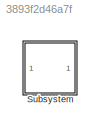
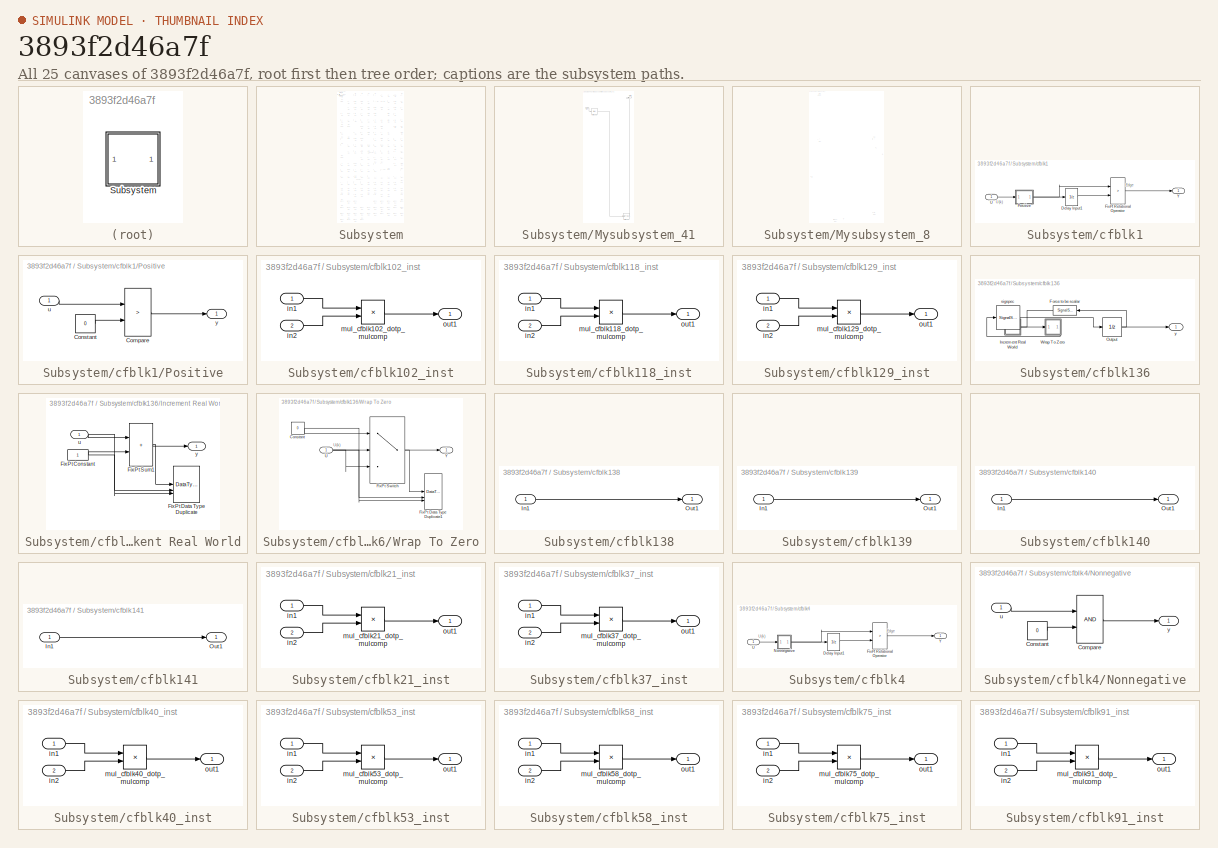
[diagram: thumbnail index - all 25 canvases of the model, root first then tree order]
MODEL slx_3893f2d46a7f
KIND model
CONFIG AbsTol = auto
CONFIG EnableMultiTasking = off
CONFIG FixedStep = auto
CONFIG MaxStep = auto
CONFIG MinStep = auto
CONFIG RelTol = 1e-3
CONFIG SampleTimeConstraint = Unconstrained
CONFIG SolverName = VariableStepAuto
CONFIG StartTime = 0.0
CONFIG StopTime = 10.0
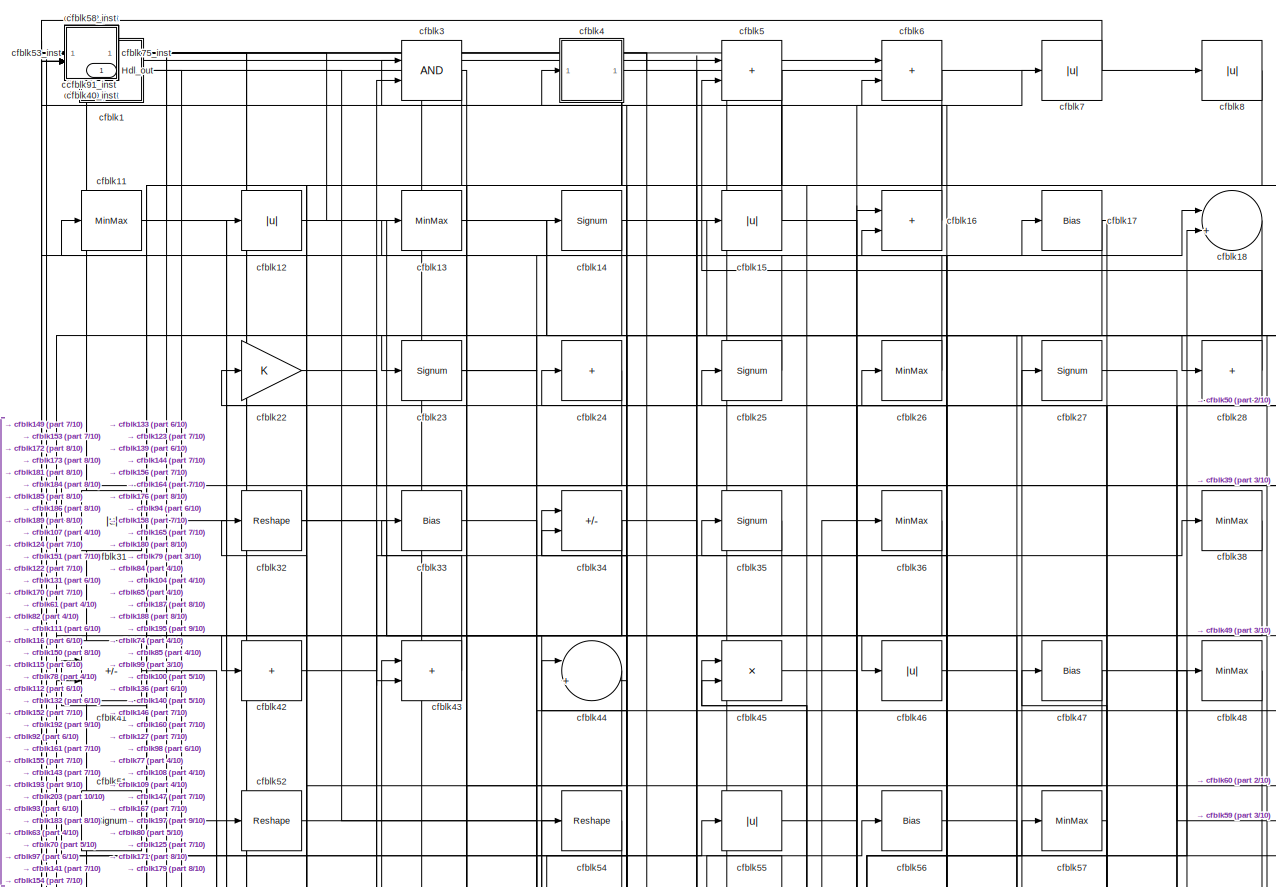
[diagram: Subsystem - part 1/10, full width, top band]
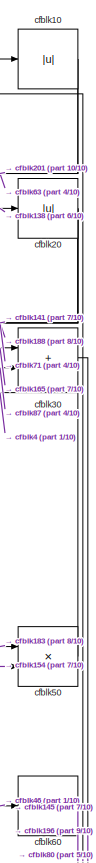
[diagram: Subsystem - part 2/10, top right region]
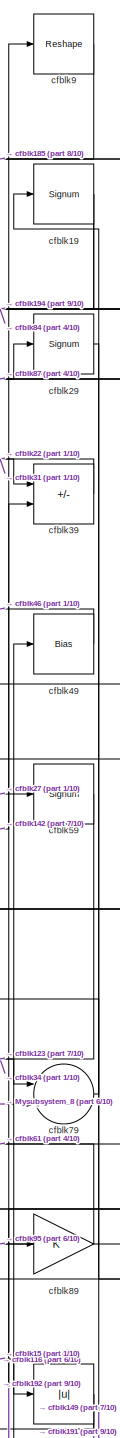
[diagram: Subsystem - part 3/10, top right region]
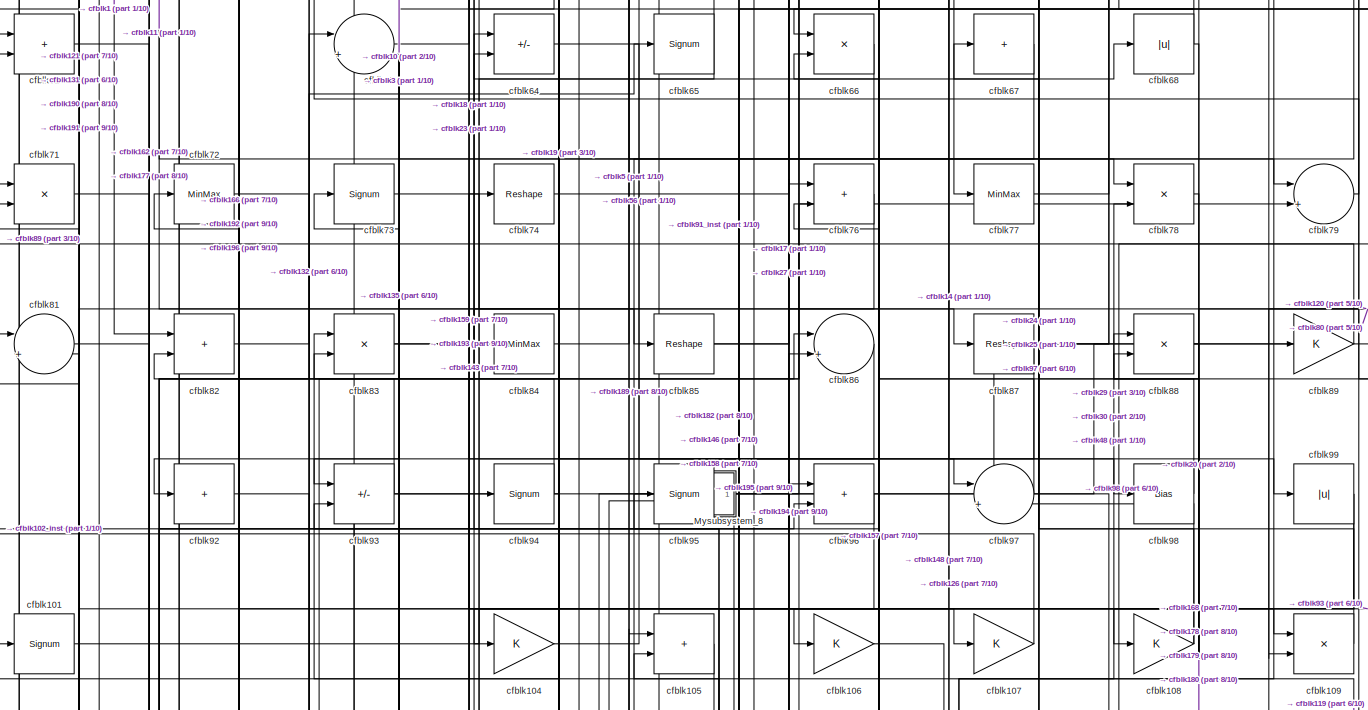
[diagram: Subsystem - part 4/10, full width, middle band]
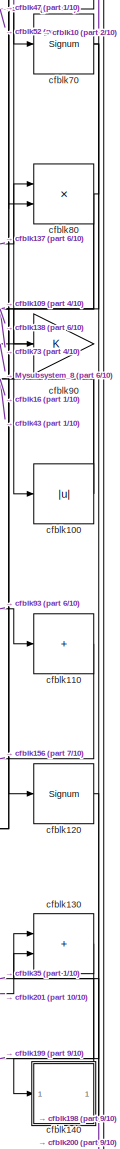
[diagram: Subsystem - part 5/10, middle right region]
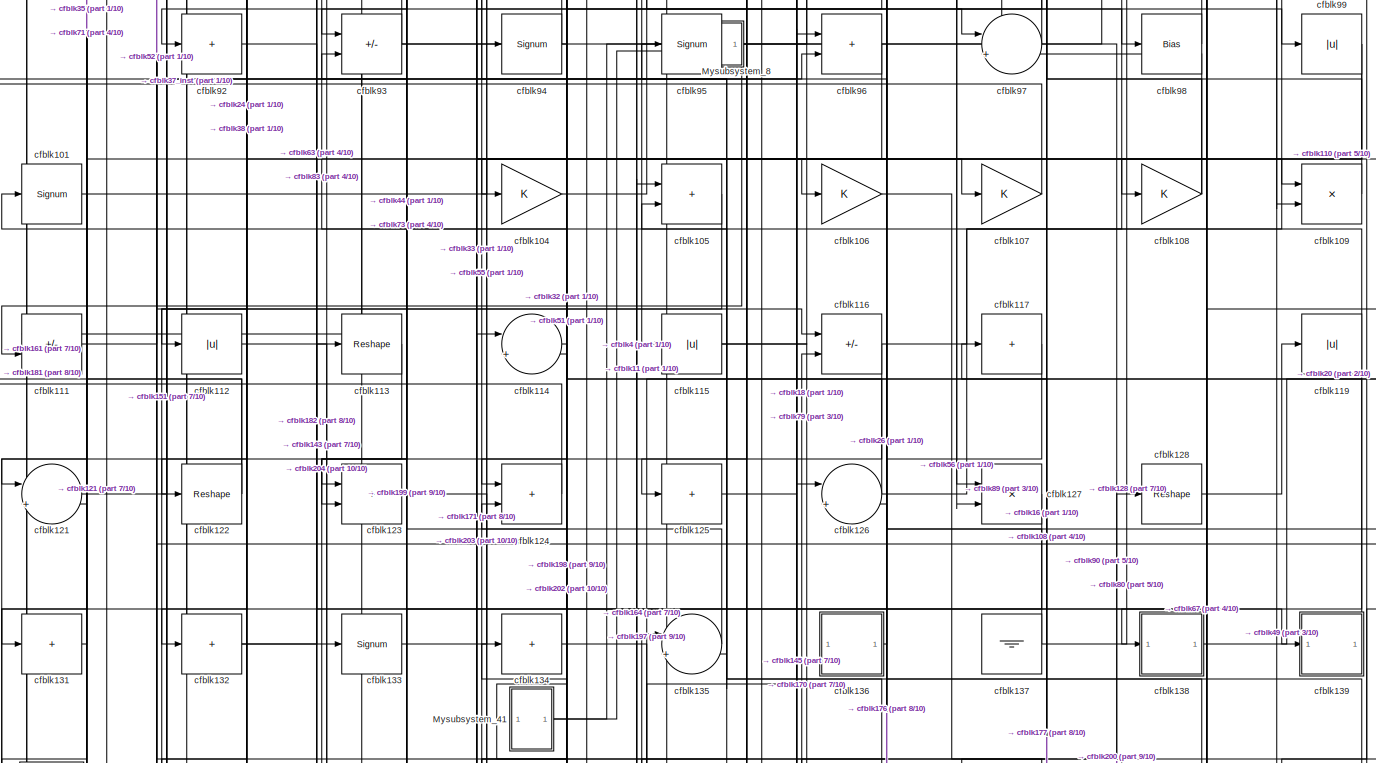
[diagram: Subsystem - part 6/10, full width, middle band]
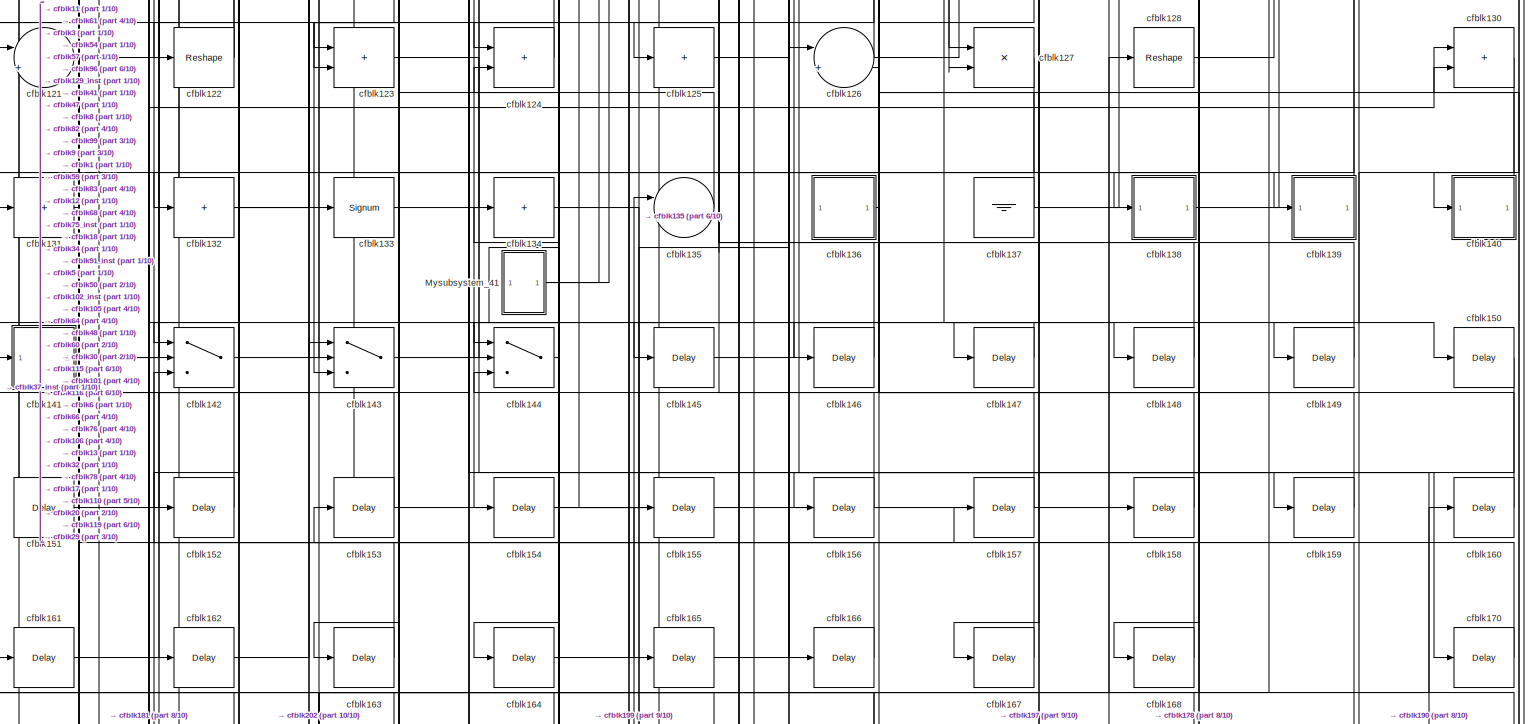
[diagram: Subsystem - part 7/10, full width, bottom band]
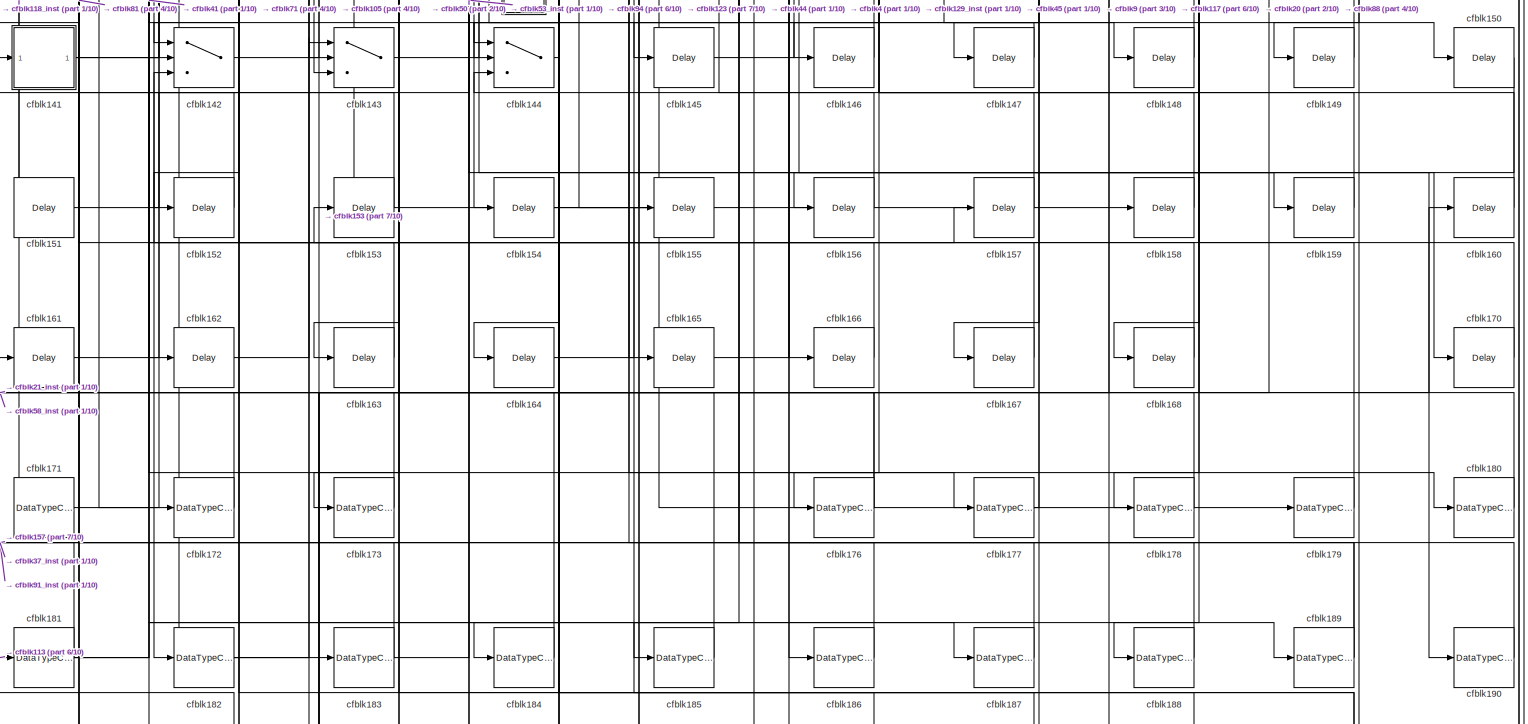
[diagram: Subsystem - part 8/10, full width, bottom band]
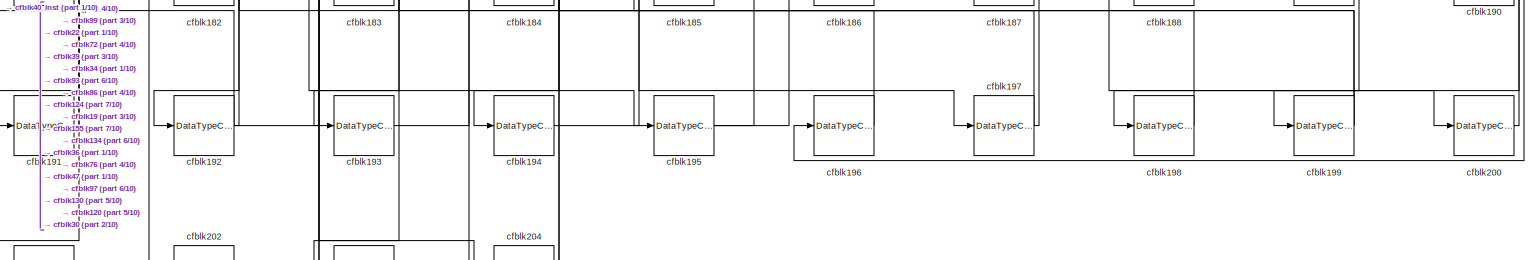
[diagram: Subsystem - part 9/10, full width, bottom band]
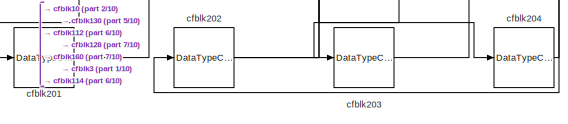
[diagram: Subsystem - part 10/10, bottom left region]
BLOCK [SubSystem] Subsystem
BLOCK [Outport] Subsystem/Hdl_out
  OutDataTypeStr = uint8
  SampleTime = 1
BLOCK [SubSystem] Subsystem/Mysubsystem_41
BLOCK [Inport] Subsystem/Mysubsystem_41/In1
  OutDataTypeStr = uint8
  PortDimensions = 1
  SampleTime = 1
BLOCK [Outport] Subsystem/Mysubsystem_41/Out1
  SampleTime = 1
BLOCK [Bias] Subsystem/Mysubsystem_41/cfblk103
  Bias = 0.0
  SaturateOnIntegerOverflow = off
BLOCK [DataTypeConversion] Subsystem/Mysubsystem_41/cfblk175
  OutDataTypeStr = uint8
  RndMeth = Floor
  SaturateOnIntegerOverflow = off
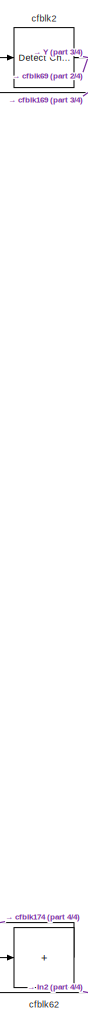
[diagram: Subsystem/Mysubsystem_8 - part 1/4, top left region]
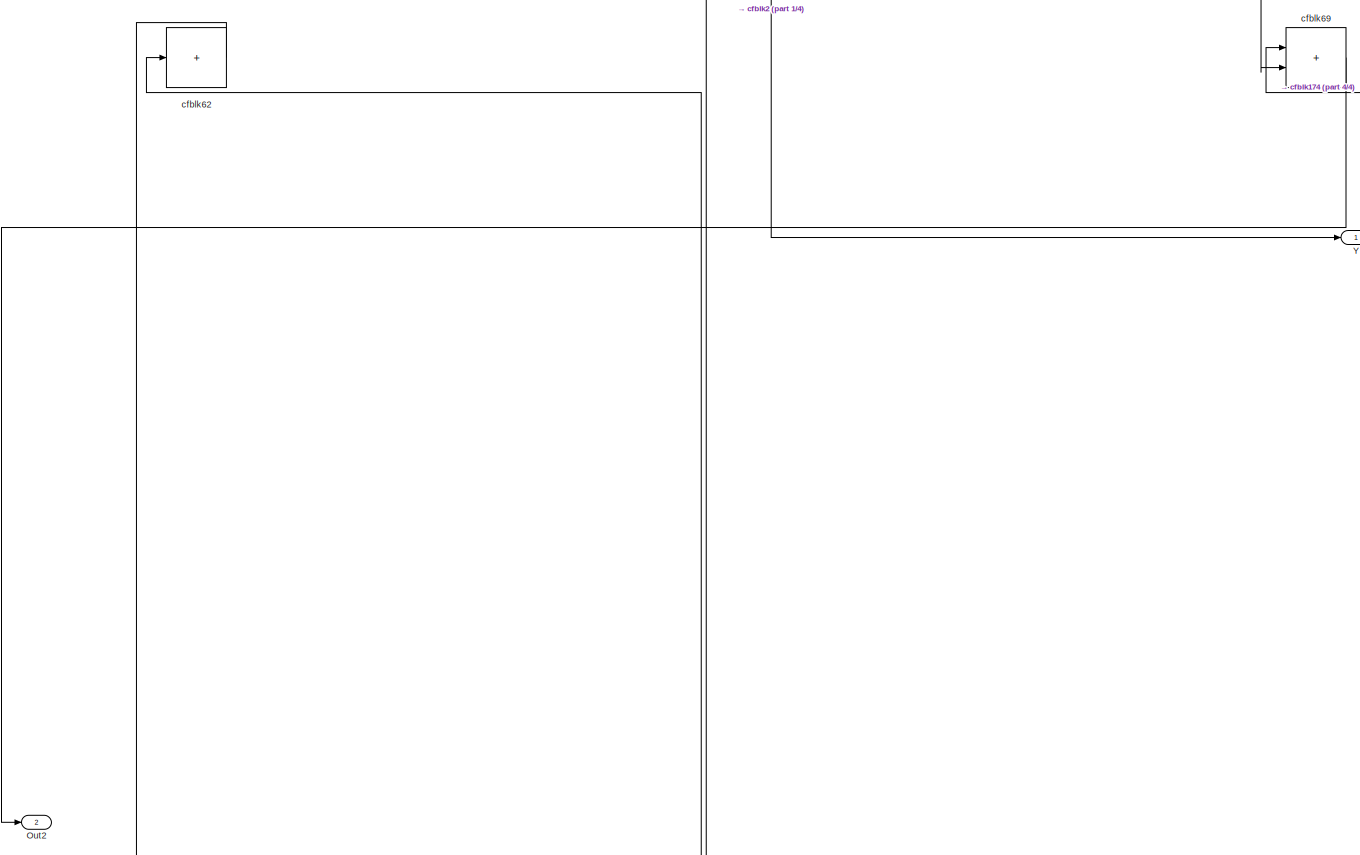
[diagram: Subsystem/Mysubsystem_8 - part 2/4, full width, middle band]
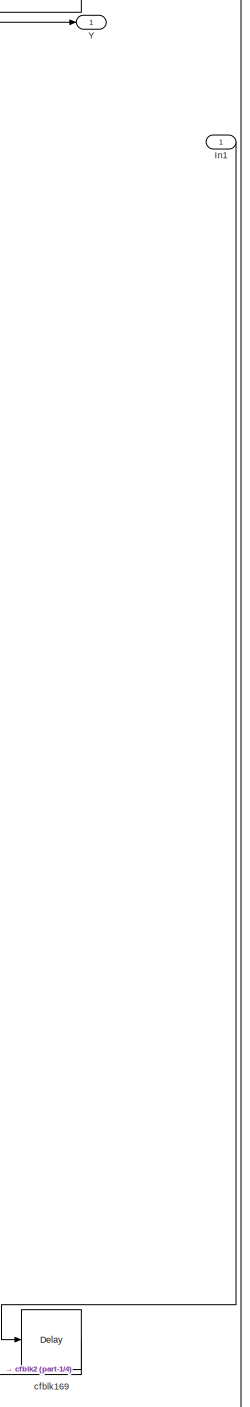
[diagram: Subsystem/Mysubsystem_8 - part 3/4, bottom right region]
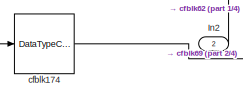
[diagram: Subsystem/Mysubsystem_8 - part 4/4, bottom center region]
BLOCK [SubSystem] Subsystem/Mysubsystem_8
BLOCK [Inport] Subsystem/Mysubsystem_8/In1
  OutDataTypeStr = uint8
  PortDimensions = 1
  SampleTime = 1
BLOCK [Inport] Subsystem/Mysubsystem_8/In2
  OutDataTypeStr = uint8
  Port = 2
  PortDimensions = 1
  SampleTime = 1
BLOCK [Outport] Subsystem/Mysubsystem_8/Out2
  Port = 2
  SampleTime = 1
BLOCK [Outport] Subsystem/Mysubsystem_8/Y
  SampleTime = 1
BLOCK [Delay] Subsystem/Mysubsystem_8/cfblk169
  InputPortMap = u0
  SampleTime = 1
BLOCK [DataTypeConversion] Subsystem/Mysubsystem_8/cfblk174
  OutDataTypeStr = uint8
  RndMeth = Floor
  SaturateOnIntegerOverflow = off
BLOCK [Reference] Subsystem/Mysubsystem_8/cfblk2  REF=simulink/Logic and Bit
Operations/Detect
Change
  LibrarySourceBlock = hdlsllib/Logic and Bit\nOperations/Detect\nChange
  SourceBlock = simulink/Logic and Bit\nOperations/Detect\nChange
  SourceType = Detect Change
BLOCK [Sum] Subsystem/Mysubsystem_8/cfblk62
  IconShape = rectangular
  Inputs = +
BLOCK [Sum] Subsystem/Mysubsystem_8/cfblk69
  IconShape = rectangular
BLOCK [SubSystem] Subsystem/cfblk1
BLOCK [UnitDelay] Subsystem/cfblk1/Delay Input1
  Description = Store in Global RAM
  DisableCoverage = on
  HasFrameUpgradeWarning = on
  InitialCondition = vinit
  SampleTime = -1
BLOCK [RelationalOperator] Subsystem/cfblk1/FixPt Relational Operator
  InputSameDT = off
  Operator = >
  OutDataTypeStr = fixdt(0, 8)
  ZeroCross = off
BLOCK [SubSystem] Subsystem/cfblk1/Positive
BLOCK [RelationalOperator] Subsystem/cfblk1/Positive/Compare
  Operator = >
  OutDataTypeStr = boolean
  ZeroCross = off
BLOCK [Constant] Subsystem/cfblk1/Positive/Constant
  DisableCoverage = on
  OutDataTypeStr = Inherit: Inherit via back propagation
  PreserveConstantTs = on
  SampleTime = -1
  Value = 0
BLOCK [Inport] Subsystem/cfblk1/Positive/u
  OutDataTypeStr = uint8
  SampleTime = 1
BLOCK [Outport] Subsystem/cfblk1/Positive/y
  SampleTime = 1
BLOCK [Inport] Subsystem/cfblk1/U
  OutDataTypeStr = uint8
  SampleTime = 1
BLOCK [Outport] Subsystem/cfblk1/Y
  SampleTime = 1
BLOCK [Abs] Subsystem/cfblk10
  OutDataTypeStr = uint8
  SaturateOnIntegerOverflow = off
BLOCK [Abs] Subsystem/cfblk100
  OutDataTypeStr = uint8
  SaturateOnIntegerOverflow = off
BLOCK [Signum] Subsystem/cfblk101
BLOCK [SubSystem] Subsystem/cfblk102_inst
BLOCK [Inport] Subsystem/cfblk102_inst/in1
  OutDataTypeStr = uint8
  SampleTime = 1
BLOCK [Inport] Subsystem/cfblk102_inst/in2
  OutDataTypeStr = uint8
  Port = 2
  SampleTime = 1
BLOCK [Product] Subsystem/cfblk102_inst/mul_cfblk102_dotp_mulcomp
  Inputs = **
  OutDataTypeStr = uint8
  SampleTime = 1
BLOCK [Outport] Subsystem/cfblk102_inst/out1
  OutDataTypeStr = uint8
  SampleTime = 1
BLOCK [Gain] Subsystem/cfblk104
  OutDataTypeStr = uint8
BLOCK [Sum] Subsystem/cfblk105
  IconShape = rectangular
  OutDataTypeStr = uint8
BLOCK [Gain] Subsystem/cfblk106
  OutDataTypeStr = uint8
BLOCK [Gain] Subsystem/cfblk107
  OutDataTypeStr = uint8
BLOCK [Gain] Subsystem/cfblk108
  OutDataTypeStr = uint8
BLOCK [Product] Subsystem/cfblk109
  Inputs = */
  OutDataTypeStr = uint8
  RndMeth = Zero
  SaturateOnIntegerOverflow = on
BLOCK [MinMax] Subsystem/cfblk11
  OutDataTypeStr = uint8
BLOCK [Sum] Subsystem/cfblk110
  IconShape = rectangular
  Inputs = +
  OutDataTypeStr = uint8
BLOCK [Sum] Subsystem/cfblk111
  IconShape = rectangular
  Inputs = +-
  OutDataTypeStr = uint8
BLOCK [Abs] Subsystem/cfblk112
  OutDataTypeStr = uint8
  SaturateOnIntegerOverflow = off
BLOCK [Reshape] Subsystem/cfblk113
BLOCK [Sum] Subsystem/cfblk114
  Inputs = |++
  OutDataTypeStr = uint8
BLOCK [Abs] Subsystem/cfblk115
  OutDataTypeStr = uint8
  SaturateOnIntegerOverflow = off
BLOCK [Sum] Subsystem/cfblk116
  IconShape = rectangular
  Inputs = +-
  OutDataTypeStr = uint8
BLOCK [Sum] Subsystem/cfblk117
  IconShape = rectangular
  Inputs = +
  OutDataTypeStr = uint8
BLOCK [SubSystem] Subsystem/cfblk118_inst
BLOCK [Inport] Subsystem/cfblk118_inst/in1
  OutDataTypeStr = uint8
  SampleTime = 1
BLOCK [Inport] Subsystem/cfblk118_inst/in2
  OutDataTypeStr = uint8
  Port = 2
  SampleTime = 1
BLOCK [Product] Subsystem/cfblk118_inst/mul_cfblk118_dotp_mulcomp
  Inputs = **
  OutDataTypeStr = uint8
  SampleTime = 1
BLOCK [Outport] Subsystem/cfblk118_inst/out1
  OutDataTypeStr = uint8
  SampleTime = 1
BLOCK [Abs] Subsystem/cfblk119
  OutDataTypeStr = uint8
  SaturateOnIntegerOverflow = off
BLOCK [Abs] Subsystem/cfblk12
  OutDataTypeStr = uint8
  SaturateOnIntegerOverflow = off
BLOCK [Signum] Subsystem/cfblk120
BLOCK [Sum] Subsystem/cfblk121
  Inputs = |++
  OutDataTypeStr = uint8
BLOCK [Reshape] Subsystem/cfblk122
BLOCK [Sum] Subsystem/cfblk123
  IconShape = rectangular
  OutDataTypeStr = uint8
BLOCK [Sum] Subsystem/cfblk124
  IconShape = rectangular
  OutDataTypeStr = uint8
BLOCK [Sum] Subsystem/cfblk125
  IconShape = rectangular
  Inputs = +
  OutDataTypeStr = uint8
BLOCK [Sum] Subsystem/cfblk126
  Inputs = |++
  OutDataTypeStr = uint8
BLOCK [Product] Subsystem/cfblk127
  Inputs = */
  OutDataTypeStr = uint8
  RndMeth = Zero
  SaturateOnIntegerOverflow = on
BLOCK [Reshape] Subsystem/cfblk128
BLOCK [SubSystem] Subsystem/cfblk129_inst
BLOCK [Inport] Subsystem/cfblk129_inst/in1
  OutDataTypeStr = uint8
  SampleTime = 1
BLOCK [Inport] Subsystem/cfblk129_inst/in2
  OutDataTypeStr = uint8
  Port = 2
  SampleTime = 1
BLOCK [Product] Subsystem/cfblk129_inst/mul_cfblk129_dotp_mulcomp
  Inputs = **
  OutDataTypeStr = uint8
  SampleTime = 1
BLOCK [Outport] Subsystem/cfblk129_inst/out1
  OutDataTypeStr = uint8
  SampleTime = 1
BLOCK [MinMax] Subsystem/cfblk13
  OutDataTypeStr = uint8
BLOCK [Sum] Subsystem/cfblk130
  IconShape = rectangular
  OutDataTypeStr = uint8
BLOCK [Sum] Subsystem/cfblk131
  IconShape = rectangular
  Inputs = +
  OutDataTypeStr = uint8
BLOCK [Sum] Subsystem/cfblk132
  IconShape = rectangular
  Inputs = +
  OutDataTypeStr = uint8
BLOCK [Signum] Subsystem/cfblk133
BLOCK [Sum] Subsystem/cfblk134
  IconShape = rectangular
  Inputs = +
  OutDataTypeStr = uint8
BLOCK [Sum] Subsystem/cfblk135
  Inputs = |++
  OutDataTypeStr = uint8
BLOCK [SubSystem] Subsystem/cfblk136
BLOCK [SignalSpecification] Subsystem/cfblk136/Force to be scalar
  Dimensions = 1
  DisableCoverage = on
BLOCK [SubSystem] Subsystem/cfblk136/Increment Real World
BLOCK [Constant] Subsystem/cfblk136/Increment Real World/FixPt Constant
  DisableCoverage = on
  OutDataTypeStr = Inherit: Inherit via back propagation
  SampleTime = -1
BLOCK [DataTypeDuplicate] Subsystem/cfblk136/Increment Real World/FixPt Data Type Duplicate
  DisableCoverage = on
  NumInputPorts = 3
BLOCK [Sum] Subsystem/cfblk136/Increment Real World/FixPt Sum1
  IconShape = rectangular
  InputSameDT = on
  LockScale = on
  OutDataTypeStr = Inherit: Inherit via back propagation
BLOCK [Inport] Subsystem/cfblk136/Increment Real World/u
  OutDataTypeStr = uint16
  SampleTime = 1
BLOCK [Outport] Subsystem/cfblk136/Increment Real World/y
  SampleTime = 1
BLOCK [UnitDelay] Subsystem/cfblk136/Output
  HasFrameUpgradeWarning = on
  InitialCondition = 0.0
  SampleTime = tsamp
BLOCK [SubSystem] Subsystem/cfblk136/Wrap To Zero
BLOCK [Constant] Subsystem/cfblk136/Wrap To Zero/Constant
  DisableCoverage = on
  OutDataTypeStr = Inherit: Inherit via back propagation
  SampleTime = -1
  Value = 0
BLOCK [DataTypeDuplicate] Subsystem/cfblk136/Wrap To Zero/FixPt Data Type Duplicate1
  DisableCoverage = on
  NumInputPorts = 3
BLOCK [Switch] Subsystem/cfblk136/Wrap To Zero/FixPt Switch
  Criteria = u2 > Threshold
  InputSameDT = off
  OutDataTypeStr = Inherit: Inherit via back propagation
  SaturateOnIntegerOverflow = off
  Threshold = Threshold
  ZeroCross = off
BLOCK [Inport] Subsystem/cfblk136/Wrap To Zero/U
  OutDataTypeStr = uint16
  SampleTime = 1
BLOCK [Outport] Subsystem/cfblk136/Wrap To Zero/Y
  SampleTime = 1
BLOCK [SignalSpecification] Subsystem/cfblk136/sigspec
  Dimensions = 1
  OutDataTypeStr = uint16
BLOCK [Outport] Subsystem/cfblk136/y
  SampleTime = 1
BLOCK [Ground] Subsystem/cfblk137
BLOCK [SubSystem] Subsystem/cfblk138
BLOCK [Inport] Subsystem/cfblk138/In1
  OutDataTypeStr = uint8
  PortDimensions = 1
  SampleTime = 1
BLOCK [Outport] Subsystem/cfblk138/Out1
  SampleTime = 1
BLOCK [SubSystem] Subsystem/cfblk139
BLOCK [Inport] Subsystem/cfblk139/In1
  OutDataTypeStr = uint8
  PortDimensions = 1
  SampleTime = 1
BLOCK [Outport] Subsystem/cfblk139/Out1
  SampleTime = 1
BLOCK [Signum] Subsystem/cfblk14
BLOCK [SubSystem] Subsystem/cfblk140
BLOCK [Inport] Subsystem/cfblk140/In1
  OutDataTypeStr = uint8
  PortDimensions = 1
  SampleTime = 1
BLOCK [Outport] Subsystem/cfblk140/Out1
  SampleTime = 1
BLOCK [SubSystem] Subsystem/cfblk141
BLOCK [Inport] Subsystem/cfblk141/In1
  OutDataTypeStr = uint8
  PortDimensions = 1
  SampleTime = 1
BLOCK [Outport] Subsystem/cfblk141/Out1
  SampleTime = 1
BLOCK [Switch] Subsystem/cfblk142
  InputSameDT = off
  OutDataTypeStr = uint8
  SaturateOnIntegerOverflow = off
BLOCK [Switch] Subsystem/cfblk143
  InputSameDT = off
  OutDataTypeStr = uint8
  SaturateOnIntegerOverflow = off
BLOCK [Switch] Subsystem/cfblk144
  InputSameDT = off
  OutDataTypeStr = uint8
  SaturateOnIntegerOverflow = off
BLOCK [Delay] Subsystem/cfblk145
  InputPortMap = u0
  SampleTime = 1
BLOCK [Delay] Subsystem/cfblk146
  InputPortMap = u0
  SampleTime = 1
BLOCK [Delay] Subsystem/cfblk147
  InputPortMap = u0
  SampleTime = 1
BLOCK [Delay] Subsystem/cfblk148
  InputPortMap = u0
  SampleTime = 1
BLOCK [Delay] Subsystem/cfblk149
  InputPortMap = u0
  SampleTime = 1
BLOCK [Abs] Subsystem/cfblk15
  OutDataTypeStr = uint8
  SaturateOnIntegerOverflow = off
BLOCK [Delay] Subsystem/cfblk150
  InputPortMap = u0
  SampleTime = 1
BLOCK [Delay] Subsystem/cfblk151
  InputPortMap = u0
  SampleTime = 1
BLOCK [Delay] Subsystem/cfblk152
  InputPortMap = u0
  SampleTime = 1
BLOCK [Delay] Subsystem/cfblk153
  InputPortMap = u0
  SampleTime = 1
BLOCK [Delay] Subsystem/cfblk154
  InputPortMap = u0
  SampleTime = 1
BLOCK [Delay] Subsystem/cfblk155
  InputPortMap = u0
  SampleTime = 1
BLOCK [Delay] Subsystem/cfblk156
  InputPortMap = u0
  SampleTime = 1
BLOCK [Delay] Subsystem/cfblk157
  InputPortMap = u0
  SampleTime = 1
BLOCK [Delay] Subsystem/cfblk158
  InputPortMap = u0
  SampleTime = 1
BLOCK [Delay] Subsystem/cfblk159
  InputPortMap = u0
  SampleTime = 1
BLOCK [Sum] Subsystem/cfblk16
  IconShape = rectangular
  OutDataTypeStr = uint8
BLOCK [Delay] Subsystem/cfblk160
  InputPortMap = u0
  SampleTime = 1
BLOCK [Delay] Subsystem/cfblk161
  InputPortMap = u0
  SampleTime = 1
BLOCK [Delay] Subsystem/cfblk162
  InputPortMap = u0
  SampleTime = 1
BLOCK [Delay] Subsystem/cfblk163
  InputPortMap = u0
  SampleTime = 1
BLOCK [Delay] Subsystem/cfblk164
  InputPortMap = u0
  SampleTime = 1
BLOCK [Delay] Subsystem/cfblk165
  InputPortMap = u0
  SampleTime = 1
BLOCK [Delay] Subsystem/cfblk166
  InputPortMap = u0
  SampleTime = 1
BLOCK [Delay] Subsystem/cfblk167
  InputPortMap = u0
  SampleTime = 1
BLOCK [Delay] Subsystem/cfblk168
  InputPortMap = u0
  SampleTime = 1
BLOCK [Bias] Subsystem/cfblk17
  Bias = 0.0
  SaturateOnIntegerOverflow = off
BLOCK [Delay] Subsystem/cfblk170
  InputPortMap = u0
  SampleTime = 1
BLOCK [DataTypeConversion] Subsystem/cfblk171
  OutDataTypeStr = uint8
  RndMeth = Floor
  SaturateOnIntegerOverflow = off
BLOCK [DataTypeConversion] Subsystem/cfblk172
  OutDataTypeStr = uint8
  RndMeth = Floor
  SaturateOnIntegerOverflow = off
BLOCK [DataTypeConversion] Subsystem/cfblk173
  OutDataTypeStr = uint8
  RndMeth = Floor
  SaturateOnIntegerOverflow = off
BLOCK [DataTypeConversion] Subsystem/cfblk176
  OutDataTypeStr = uint8
  RndMeth = Floor
  SaturateOnIntegerOverflow = off
BLOCK [DataTypeConversion] Subsystem/cfblk177
  OutDataTypeStr = uint8
  RndMeth = Floor
  SaturateOnIntegerOverflow = off
BLOCK [DataTypeConversion] Subsystem/cfblk178
  OutDataTypeStr = uint8
  RndMeth = Floor
  SaturateOnIntegerOverflow = off
BLOCK [DataTypeConversion] Subsystem/cfblk179
  OutDataTypeStr = uint8
  RndMeth = Floor
  SaturateOnIntegerOverflow = off
BLOCK [Sum] Subsystem/cfblk18
  Inputs = |++
  OutDataTypeStr = uint8
BLOCK [DataTypeConversion] Subsystem/cfblk180
  OutDataTypeStr = uint8
  RndMeth = Floor
  SaturateOnIntegerOverflow = off
BLOCK [DataTypeConversion] Subsystem/cfblk181
  OutDataTypeStr = uint8
  RndMeth = Floor
  SaturateOnIntegerOverflow = off
BLOCK [DataTypeConversion] Subsystem/cfblk182
  OutDataTypeStr = uint8
  RndMeth = Floor
  SaturateOnIntegerOverflow = off
BLOCK [DataTypeConversion] Subsystem/cfblk183
  OutDataTypeStr = uint8
  RndMeth = Floor
  SaturateOnIntegerOverflow = off
BLOCK [DataTypeConversion] Subsystem/cfblk184
  OutDataTypeStr = uint8
  RndMeth = Floor
  SaturateOnIntegerOverflow = off
BLOCK [DataTypeConversion] Subsystem/cfblk185
  OutDataTypeStr = uint8
  RndMeth = Floor
  SaturateOnIntegerOverflow = off
BLOCK [DataTypeConversion] Subsystem/cfblk186
  OutDataTypeStr = uint8
  RndMeth = Floor
  SaturateOnIntegerOverflow = off
BLOCK [DataTypeConversion] Subsystem/cfblk187
  OutDataTypeStr = uint8
  RndMeth = Floor
  SaturateOnIntegerOverflow = off
BLOCK [DataTypeConversion] Subsystem/cfblk188
  OutDataTypeStr = uint8
  RndMeth = Floor
  SaturateOnIntegerOverflow = off
BLOCK [DataTypeConversion] Subsystem/cfblk189
  OutDataTypeStr = uint8
  RndMeth = Floor
  SaturateOnIntegerOverflow = off
BLOCK [Signum] Subsystem/cfblk19
BLOCK [DataTypeConversion] Subsystem/cfblk190
  OutDataTypeStr = uint8
  RndMeth = Floor
  SaturateOnIntegerOverflow = off
BLOCK [DataTypeConversion] Subsystem/cfblk191
  OutDataTypeStr = uint8
  RndMeth = Floor
  SaturateOnIntegerOverflow = off
BLOCK [DataTypeConversion] Subsystem/cfblk192
  OutDataTypeStr = uint8
  RndMeth = Floor
  SaturateOnIntegerOverflow = off
BLOCK [DataTypeConversion] Subsystem/cfblk193
  OutDataTypeStr = uint8
  RndMeth = Floor
  SaturateOnIntegerOverflow = off
BLOCK [DataTypeConversion] Subsystem/cfblk194
  OutDataTypeStr = uint8
  RndMeth = Floor
  SaturateOnIntegerOverflow = off
BLOCK [DataTypeConversion] Subsystem/cfblk195
  OutDataTypeStr = uint8
  RndMeth = Floor
  SaturateOnIntegerOverflow = off
BLOCK [DataTypeConversion] Subsystem/cfblk196
  OutDataTypeStr = uint8
  RndMeth = Floor
  SaturateOnIntegerOverflow = off
BLOCK [DataTypeConversion] Subsystem/cfblk197
  OutDataTypeStr = uint8
  RndMeth = Floor
  SaturateOnIntegerOverflow = off
BLOCK [DataTypeConversion] Subsystem/cfblk198
  OutDataTypeStr = uint8
  RndMeth = Floor
  SaturateOnIntegerOverflow = off
BLOCK [DataTypeConversion] Subsystem/cfblk199
  OutDataTypeStr = uint8
  RndMeth = Floor
  SaturateOnIntegerOverflow = off
BLOCK [Abs] Subsystem/cfblk20
  OutDataTypeStr = uint8
  SaturateOnIntegerOverflow = off
BLOCK [DataTypeConversion] Subsystem/cfblk200
  OutDataTypeStr = uint8
  RndMeth = Floor
  SaturateOnIntegerOverflow = off
BLOCK [DataTypeConversion] Subsystem/cfblk201
  OutDataTypeStr = uint8
  RndMeth = Floor
  SaturateOnIntegerOverflow = off
BLOCK [DataTypeConversion] Subsystem/cfblk202
  OutDataTypeStr = uint8
  RndMeth = Floor
  SaturateOnIntegerOverflow = off
BLOCK [DataTypeConversion] Subsystem/cfblk203
  OutDataTypeStr = uint8
  RndMeth = Floor
  SaturateOnIntegerOverflow = off
BLOCK [DataTypeConversion] Subsystem/cfblk204
  OutDataTypeStr = uint8
  RndMeth = Floor
  SaturateOnIntegerOverflow = off
BLOCK [SubSystem] Subsystem/cfblk21_inst
BLOCK [Inport] Subsystem/cfblk21_inst/in1
  OutDataTypeStr = uint8
  SampleTime = 1
BLOCK [Inport] Subsystem/cfblk21_inst/in2
  OutDataTypeStr = uint8
  Port = 2
  SampleTime = 1
BLOCK [Product] Subsystem/cfblk21_inst/mul_cfblk21_dotp_mulcomp
  Inputs = **
  OutDataTypeStr = uint8
  SampleTime = 1
BLOCK [Outport] Subsystem/cfblk21_inst/out1
  OutDataTypeStr = uint8
  SampleTime = 1
BLOCK [Gain] Subsystem/cfblk22
  OutDataTypeStr = uint8
BLOCK [Signum] Subsystem/cfblk23
BLOCK [Sum] Subsystem/cfblk24
  IconShape = rectangular
  Inputs = +
  OutDataTypeStr = uint8
BLOCK [Signum] Subsystem/cfblk25
BLOCK [MinMax] Subsystem/cfblk26
  OutDataTypeStr = uint8
BLOCK [Signum] Subsystem/cfblk27
BLOCK [Sum] Subsystem/cfblk28
  IconShape = rectangular
  Inputs = +
  OutDataTypeStr = uint8
BLOCK [Signum] Subsystem/cfblk29
BLOCK [Logic] Subsystem/cfblk3
  AllPortsSameDT = off
  OutDataTypeStr = boolean
BLOCK [Sum] Subsystem/cfblk30
  IconShape = rectangular
  OutDataTypeStr = uint8
BLOCK [Abs] Subsystem/cfblk31
  OutDataTypeStr = uint8
  SaturateOnIntegerOverflow = off
BLOCK [Reshape] Subsystem/cfblk32
BLOCK [Bias] Subsystem/cfblk33
  Bias = 0.0
  SaturateOnIntegerOverflow = off
BLOCK [Sum] Subsystem/cfblk34
  IconShape = rectangular
  Inputs = +-
  OutDataTypeStr = uint8
BLOCK [Signum] Subsystem/cfblk35
BLOCK [MinMax] Subsystem/cfblk36
  OutDataTypeStr = uint8
BLOCK [SubSystem] Subsystem/cfblk37_inst
BLOCK [Inport] Subsystem/cfblk37_inst/in1
  OutDataTypeStr = uint8
  SampleTime = 1
BLOCK [Inport] Subsystem/cfblk37_inst/in2
  OutDataTypeStr = uint8
  Port = 2
  SampleTime = 1
BLOCK [Product] Subsystem/cfblk37_inst/mul_cfblk37_dotp_mulcomp
  Inputs = **
  OutDataTypeStr = uint8
  SampleTime = 1
BLOCK [Outport] Subsystem/cfblk37_inst/out1
  OutDataTypeStr = uint8
  SampleTime = 1
BLOCK [MinMax] Subsystem/cfblk38
  OutDataTypeStr = uint8
BLOCK [Sum] Subsystem/cfblk39
  IconShape = rectangular
  Inputs = +-
  OutDataTypeStr = uint8
BLOCK [SubSystem] Subsystem/cfblk4
BLOCK [UnitDelay] Subsystem/cfblk4/Delay Input1
  Description = Store in Global RAM
  DisableCoverage = on
  HasFrameUpgradeWarning = on
  InitialCondition = vinit
  SampleTime = -1
BLOCK [RelationalOperator] Subsystem/cfblk4/FixPt Relational Operator
  InputSameDT = off
  Operator = >
  OutDataTypeStr = fixdt(0, 8)
  ZeroCross = off
BLOCK [SubSystem] Subsystem/cfblk4/Nonnegative
BLOCK [RelationalOperator] Subsystem/cfblk4/Nonnegative/Compare
  OutDataTypeStr = boolean
  ZeroCross = off
BLOCK [Constant] Subsystem/cfblk4/Nonnegative/Constant
  DisableCoverage = on
  OutDataTypeStr = Inherit: Inherit via back propagation
  PreserveConstantTs = on
  SampleTime = -1
  Value = 0
BLOCK [Inport] Subsystem/cfblk4/Nonnegative/u
  OutDataTypeStr = uint8
  SampleTime = 1
BLOCK [Outport] Subsystem/cfblk4/Nonnegative/y
  SampleTime = 1
BLOCK [Inport] Subsystem/cfblk4/U
  OutDataTypeStr = uint8
  SampleTime = 1
BLOCK [Outport] Subsystem/cfblk4/Y
  SampleTime = 1
BLOCK [SubSystem] Subsystem/cfblk40_inst
BLOCK [Inport] Subsystem/cfblk40_inst/in1
  OutDataTypeStr = uint8
  SampleTime = 1
BLOCK [Inport] Subsystem/cfblk40_inst/in2
  OutDataTypeStr = uint8
  Port = 2
  SampleTime = 1
BLOCK [Product] Subsystem/cfblk40_inst/mul_cfblk40_dotp_mulcomp
  Inputs = **
  OutDataTypeStr = uint8
  SampleTime = 1
BLOCK [Outport] Subsystem/cfblk40_inst/out1
  OutDataTypeStr = uint8
  SampleTime = 1
BLOCK [Sum] Subsystem/cfblk41
  IconShape = rectangular
  Inputs = +-
  OutDataTypeStr = uint8
BLOCK [Sum] Subsystem/cfblk42
  IconShape = rectangular
  Inputs = +
  OutDataTypeStr = uint8
BLOCK [Sum] Subsystem/cfblk43
  IconShape = rectangular
  OutDataTypeStr = uint8
BLOCK [Sum] Subsystem/cfblk44
  Inputs = |++
  OutDataTypeStr = uint8
BLOCK [Product] Subsystem/cfblk45
  Inputs = */
  OutDataTypeStr = uint8
  RndMeth = Zero
  SaturateOnIntegerOverflow = on
BLOCK [Abs] Subsystem/cfblk46
  OutDataTypeStr = uint8
  SaturateOnIntegerOverflow = off
BLOCK [Bias] Subsystem/cfblk47
  Bias = 0.0
  SaturateOnIntegerOverflow = off
BLOCK [MinMax] Subsystem/cfblk48
  OutDataTypeStr = uint8
BLOCK [Bias] Subsystem/cfblk49
  Bias = 0.0
  SaturateOnIntegerOverflow = off
BLOCK [Sum] Subsystem/cfblk5
  IconShape = rectangular
  OutDataTypeStr = uint8
BLOCK [Product] Subsystem/cfblk50
  Inputs = */
  OutDataTypeStr = uint8
  RndMeth = Zero
  SaturateOnIntegerOverflow = on
BLOCK [Signum] Subsystem/cfblk51
BLOCK [Reshape] Subsystem/cfblk52
BLOCK [SubSystem] Subsystem/cfblk53_inst
BLOCK [Inport] Subsystem/cfblk53_inst/in1
  OutDataTypeStr = uint8
  SampleTime = 1
BLOCK [Inport] Subsystem/cfblk53_inst/in2
  OutDataTypeStr = uint8
  Port = 2
  SampleTime = 1
BLOCK [Product] Subsystem/cfblk53_inst/mul_cfblk53_dotp_mulcomp
  Inputs = **
  OutDataTypeStr = uint8
  SampleTime = 1
BLOCK [Outport] Subsystem/cfblk53_inst/out1
  OutDataTypeStr = uint8
  SampleTime = 1
BLOCK [Reshape] Subsystem/cfblk54
BLOCK [Abs] Subsystem/cfblk55
  OutDataTypeStr = uint8
  SaturateOnIntegerOverflow = off
BLOCK [Bias] Subsystem/cfblk56
  Bias = 0.0
  SaturateOnIntegerOverflow = off
BLOCK [MinMax] Subsystem/cfblk57
  OutDataTypeStr = uint8
BLOCK [SubSystem] Subsystem/cfblk58_inst
BLOCK [Inport] Subsystem/cfblk58_inst/in1
  OutDataTypeStr = uint8
  SampleTime = 1
BLOCK [Inport] Subsystem/cfblk58_inst/in2
  OutDataTypeStr = uint8
  Port = 2
  SampleTime = 1
BLOCK [Product] Subsystem/cfblk58_inst/mul_cfblk58_dotp_mulcomp
  Inputs = **
  OutDataTypeStr = uint8
  SampleTime = 1
BLOCK [Outport] Subsystem/cfblk58_inst/out1
  OutDataTypeStr = uint8
  SampleTime = 1
BLOCK [Signum] Subsystem/cfblk59
BLOCK [Sum] Subsystem/cfblk6
  IconShape = rectangular
  OutDataTypeStr = uint8
BLOCK [Bias] Subsystem/cfblk60
  Bias = 0.0
  SaturateOnIntegerOverflow = off
BLOCK [Sum] Subsystem/cfblk61
  IconShape = rectangular
  OutDataTypeStr = uint8
BLOCK [Sum] Subsystem/cfblk63
  Inputs = |++
  OutDataTypeStr = uint8
BLOCK [Sum] Subsystem/cfblk64
  IconShape = rectangular
  Inputs = +-
  OutDataTypeStr = uint8
BLOCK [Signum] Subsystem/cfblk65
BLOCK [Product] Subsystem/cfblk66
  Inputs = */
  OutDataTypeStr = uint8
  RndMeth = Zero
  SaturateOnIntegerOverflow = on
BLOCK [Sum] Subsystem/cfblk67
  IconShape = rectangular
  Inputs = +
  OutDataTypeStr = uint8
BLOCK [Abs] Subsystem/cfblk68
  OutDataTypeStr = uint8
  SaturateOnIntegerOverflow = off
BLOCK [Abs] Subsystem/cfblk7
  OutDataTypeStr = uint8
  SaturateOnIntegerOverflow = off
BLOCK [Signum] Subsystem/cfblk70
BLOCK [Product] Subsystem/cfblk71
  Inputs = */
  OutDataTypeStr = uint8
  RndMeth = Zero
  SaturateOnIntegerOverflow = on
BLOCK [MinMax] Subsystem/cfblk72
  OutDataTypeStr = uint8
BLOCK [Signum] Subsystem/cfblk73
BLOCK [Reshape] Subsystem/cfblk74
BLOCK [SubSystem] Subsystem/cfblk75_inst
BLOCK [Inport] Subsystem/cfblk75_inst/in1
  OutDataTypeStr = uint8
  SampleTime = 1
BLOCK [Inport] Subsystem/cfblk75_inst/in2
  OutDataTypeStr = uint8
  Port = 2
  SampleTime = 1
BLOCK [Product] Subsystem/cfblk75_inst/mul_cfblk75_dotp_mulcomp
  Inputs = **
  OutDataTypeStr = uint8
  SampleTime = 1
BLOCK [Outport] Subsystem/cfblk75_inst/out1
  OutDataTypeStr = uint8
  SampleTime = 1
BLOCK [Sum] Subsystem/cfblk76
  IconShape = rectangular
  OutDataTypeStr = uint8
BLOCK [MinMax] Subsystem/cfblk77
  OutDataTypeStr = uint8
BLOCK [Product] Subsystem/cfblk78
  Inputs = */
  OutDataTypeStr = uint8
  RndMeth = Zero
  SaturateOnIntegerOverflow = on
BLOCK [Sum] Subsystem/cfblk79
  Inputs = |++
  OutDataTypeStr = uint8
BLOCK [Abs] Subsystem/cfblk8
  OutDataTypeStr = uint8
  SaturateOnIntegerOverflow = off
BLOCK [Product] Subsystem/cfblk80
  Inputs = */
  OutDataTypeStr = uint8
  RndMeth = Zero
  SaturateOnIntegerOverflow = on
BLOCK [Sum] Subsystem/cfblk81
  Inputs = |++
  OutDataTypeStr = uint8
BLOCK [Sum] Subsystem/cfblk82
  IconShape = rectangular
  OutDataTypeStr = uint8
BLOCK [Product] Subsystem/cfblk83
  Inputs = */
  OutDataTypeStr = uint8
  RndMeth = Zero
  SaturateOnIntegerOverflow = on
BLOCK [MinMax] Subsystem/cfblk84
  OutDataTypeStr = uint8
BLOCK [Reshape] Subsystem/cfblk85
BLOCK [Sum] Subsystem/cfblk86
  Inputs = |++
  OutDataTypeStr = uint8
BLOCK [Reshape] Subsystem/cfblk87
BLOCK [Product] Subsystem/cfblk88
  Inputs = */
  OutDataTypeStr = uint8
  RndMeth = Zero
  SaturateOnIntegerOverflow = on
BLOCK [Gain] Subsystem/cfblk89
  OutDataTypeStr = uint8
BLOCK [Reshape] Subsystem/cfblk9
BLOCK [Gain] Subsystem/cfblk90
  OutDataTypeStr = uint8
BLOCK [SubSystem] Subsystem/cfblk91_inst
BLOCK [Inport] Subsystem/cfblk91_inst/in1
  OutDataTypeStr = uint8
  SampleTime = 1
BLOCK [Inport] Subsystem/cfblk91_inst/in2
  OutDataTypeStr = uint8
  Port = 2
  SampleTime = 1
BLOCK [Product] Subsystem/cfblk91_inst/mul_cfblk91_dotp_mulcomp
  Inputs = **
  OutDataTypeStr = uint8
  SampleTime = 1
BLOCK [Outport] Subsystem/cfblk91_inst/out1
  OutDataTypeStr = uint8
  SampleTime = 1
BLOCK [Sum] Subsystem/cfblk92
  IconShape = rectangular
  Inputs = +
  OutDataTypeStr = uint8
BLOCK [Sum] Subsystem/cfblk93
  IconShape = rectangular
  Inputs = +-
  OutDataTypeStr = uint8
BLOCK [Signum] Subsystem/cfblk94
BLOCK [Signum] Subsystem/cfblk95
BLOCK [Sum] Subsystem/cfblk96
  IconShape = rectangular
  OutDataTypeStr = uint8
BLOCK [Sum] Subsystem/cfblk97
  Inputs = |++
  OutDataTypeStr = uint8
BLOCK [Bias] Subsystem/cfblk98
  Bias = 0.0
  SaturateOnIntegerOverflow = off
BLOCK [Abs] Subsystem/cfblk99
  OutDataTypeStr = uint8
  SaturateOnIntegerOverflow = off
ANNOTATION Subsystem/cfblk1: Edge
ANNOTATION Subsystem/cfblk1: U(k)
ANNOTATION Subsystem/cfblk136/Wrap To Zero: U(k)
ANNOTATION Subsystem/cfblk4: Edge
ANNOTATION Subsystem/cfblk4: U(k)
LINE Subsystem/Mysubsystem_41/In1:1 -> Subsystem/Mysubsystem_41/cfblk103:1
LINE Subsystem/Mysubsystem_41/cfblk103:1 -> Subsystem/Mysubsystem_41/cfblk175:1
LINE Subsystem/Mysubsystem_41/cfblk175:1 -> Subsystem/Mysubsystem_41/Out1:1
LINE Subsystem/Mysubsystem_41:1 -> Subsystem/Mysubsystem_8:2
LINE Subsystem/Mysubsystem_8/In1:1 -> Subsystem/Mysubsystem_8/cfblk169:1
LINE Subsystem/Mysubsystem_8/In2:1 -> Subsystem/Mysubsystem_8/cfblk62:1
LINE Subsystem/Mysubsystem_8/cfblk169:1 -> Subsystem/Mysubsystem_8/cfblk2:1
LINE Subsystem/Mysubsystem_8/cfblk174:1 -> Subsystem/Mysubsystem_8/cfblk69:1
NET Subsystem/Mysubsystem_8/cfblk2:1 -> Subsystem/Mysubsystem_8/Y:1, Subsystem/Mysubsystem_8/cfblk69:2
LINE Subsystem/Mysubsystem_8/cfblk62:1 -> Subsystem/Mysubsystem_8/cfblk174:1
LINE Subsystem/Mysubsystem_8/cfblk69:1 -> Subsystem/Mysubsystem_8/Out2:1
LINE Subsystem/Mysubsystem_8:1 -> Subsystem/cfblk79:2
LINE Subsystem/Mysubsystem_8:2 -> Subsystem/cfblk111:2
NET Subsystem/cfblk100:1 -> Subsystem/cfblk16:2, Subsystem/cfblk43:1
LINE Subsystem/cfblk101:1 -> Subsystem/cfblk107:1
LINE Subsystem/cfblk102_inst/in1:1 -> Subsystem/cfblk102_inst/mul_cfblk102_dotp_mulcomp:1
LINE Subsystem/cfblk102_inst/in2:1 -> Subsystem/cfblk102_inst/mul_cfblk102_dotp_mulcomp:2
LINE Subsystem/cfblk102_inst/mul_cfblk102_dotp_mulcomp:1 -> Subsystem/cfblk102_inst/out1:1
LINE Subsystem/cfblk102_inst:1 -> Subsystem/cfblk6:1
LINE Subsystem/cfblk104:1 -> Subsystem/cfblk56:1
LINE Subsystem/cfblk105:1 -> Subsystem/cfblk182:1
LINE Subsystem/cfblk106:1 -> Subsystem/cfblk148:1
LINE Subsystem/cfblk107:1 -> Subsystem/cfblk102_inst:1
NET Subsystem/cfblk108:1 -> Subsystem/cfblk24:1, Subsystem/cfblk97:2
LINE Subsystem/cfblk109:1 -> Subsystem/cfblk25:1
NET Subsystem/cfblk10:1 -> Subsystem/cfblk201:1, Subsystem/cfblk63:2
LINE Subsystem/cfblk110:1 -> Subsystem/cfblk156:1
LINE Subsystem/cfblk111:1 -> Subsystem/cfblk52:1
LINE Subsystem/cfblk112:1 -> Subsystem/cfblk204:1
LINE Subsystem/cfblk113:1 -> Subsystem/cfblk181:1
LINE Subsystem/cfblk114:1 -> Subsystem/cfblk202:1
NET Subsystem/cfblk115:1 -> Subsystem/cfblk170:1, Subsystem/cfblk18:2
NET Subsystem/cfblk116:1 -> Subsystem/cfblk143:3, Subsystem/cfblk49:1
LINE Subsystem/cfblk117:1 -> Subsystem/cfblk176:1
LINE Subsystem/cfblk118_inst/in1:1 -> Subsystem/cfblk118_inst/mul_cfblk118_dotp_mulcomp:1
LINE Subsystem/cfblk118_inst/in2:1 -> Subsystem/cfblk118_inst/mul_cfblk118_dotp_mulcomp:2
LINE Subsystem/cfblk118_inst/mul_cfblk118_dotp_mulcomp:1 -> Subsystem/cfblk118_inst/out1:1
LINE Subsystem/cfblk118_inst:1 -> Subsystem/cfblk171:1
NET Subsystem/cfblk119:1 -> Subsystem/cfblk161:1, Subsystem/cfblk83:1
NET Subsystem/cfblk11:1 -> Subsystem/cfblk115:1, Subsystem/cfblk78:1
LINE Subsystem/cfblk120:1 -> Subsystem/cfblk198:1
LINE Subsystem/cfblk121:1 -> Subsystem/cfblk96:2
NET Subsystem/cfblk122:1 -> Subsystem/cfblk129_inst:1, Subsystem/cfblk41:1
LINE Subsystem/cfblk123:1 -> Subsystem/cfblk190:1
LINE Subsystem/cfblk124:1 -> Subsystem/cfblk75_inst:2
LINE Subsystem/cfblk125:1 -> Subsystem/cfblk166:1
NET Subsystem/cfblk126:1 -> Subsystem/cfblk101:1, Subsystem/cfblk78:2
LINE Subsystem/cfblk127:1 -> Subsystem/cfblk163:1
LINE Subsystem/cfblk128:1 -> Subsystem/cfblk119:1
LINE Subsystem/cfblk129_inst/in1:1 -> Subsystem/cfblk129_inst/mul_cfblk129_dotp_mulcomp:1
LINE Subsystem/cfblk129_inst/in2:1 -> Subsystem/cfblk129_inst/mul_cfblk129_dotp_mulcomp:2
LINE Subsystem/cfblk129_inst/mul_cfblk129_dotp_mulcomp:1 -> Subsystem/cfblk129_inst/out1:1
NET Subsystem/cfblk129_inst:1 -> Subsystem/cfblk12:1, Subsystem/cfblk179:1
LINE Subsystem/cfblk12:1 -> Subsystem/cfblk154:1
LINE Subsystem/cfblk130:1 -> Subsystem/cfblk199:1
LINE Subsystem/cfblk131:1 -> Subsystem/cfblk71:1
LINE Subsystem/cfblk132:1 -> Subsystem/cfblk63:1
LINE Subsystem/cfblk133:1 -> Subsystem/cfblk55:1
LINE Subsystem/cfblk134:1 -> Subsystem/cfblk197:1
LINE Subsystem/cfblk135:1 -> Subsystem/cfblk73:1
LINE Subsystem/cfblk136:1 -> Subsystem/cfblk26:1
NET Subsystem/cfblk137:1 -> Subsystem/cfblk80:1, Subsystem/cfblk95:1
LINE Subsystem/cfblk138/In1:1 -> Subsystem/cfblk138/Out1:1
LINE Subsystem/cfblk138:1 -> Subsystem/cfblk20:1
LINE Subsystem/cfblk139/In1:1 -> Subsystem/cfblk139/Out1:1
LINE Subsystem/cfblk139:1 -> Subsystem/cfblk51:1
NET Subsystem/cfblk13:1 -> Subsystem/cfblk100:1, Subsystem/cfblk127:2
LINE Subsystem/cfblk140/In1:1 -> Subsystem/cfblk140/Out1:1
LINE Subsystem/cfblk140:1 -> Subsystem/cfblk35:1
LINE Subsystem/cfblk141/In1:1 -> Subsystem/cfblk141/Out1:1
NET Subsystem/cfblk141:1 -> Subsystem/cfblk54:1, Subsystem/cfblk57:1
LINE Subsystem/cfblk142:1 -> Subsystem/cfblk9:1
LINE Subsystem/cfblk143:1 -> Subsystem/cfblk68:1
LINE Subsystem/cfblk144:1 -> Subsystem/cfblk34:1
LINE Subsystem/cfblk145:1 -> Subsystem/cfblk116:2
LINE Subsystem/cfblk146:1 -> Subsystem/cfblk64:1
LINE Subsystem/cfblk147:1 -> Subsystem/cfblk144:2
LINE Subsystem/cfblk148:1 -> Subsystem/cfblk66:2
LINE Subsystem/cfblk149:1 -> Subsystem/cfblk102_inst:2
NET Subsystem/cfblk14:1 -> Subsystem/cfblk23:1, Subsystem/cfblk77:1
LINE Subsystem/cfblk150:1 -> Subsystem/cfblk184:1
LINE Subsystem/cfblk151:1 -> Subsystem/cfblk96:1
LINE Subsystem/cfblk152:1 -> Subsystem/cfblk121:2
LINE Subsystem/cfblk153:1 -> Subsystem/cfblk37_inst:1
LINE Subsystem/cfblk154:1 -> Subsystem/cfblk50:2
LINE Subsystem/cfblk155:1 -> Subsystem/cfblk1:1
LINE Subsystem/cfblk156:1 -> Subsystem/cfblk34:2
LINE Subsystem/cfblk157:1 -> Subsystem/cfblk76:2
LINE Subsystem/cfblk158:1 -> Subsystem/cfblk105:2
LINE Subsystem/cfblk159:1 -> Subsystem/cfblk126:2
NET Subsystem/cfblk15:1 -> Subsystem/cfblk53_inst:2, Subsystem/cfblk99:1
LINE Subsystem/cfblk160:1 -> Subsystem/cfblk6:2
LINE Subsystem/cfblk161:1 -> Subsystem/cfblk3:2
LINE Subsystem/cfblk162:1 -> Subsystem/cfblk143:1
LINE Subsystem/cfblk163:1 -> Subsystem/cfblk142:3
LINE Subsystem/cfblk164:1 -> Subsystem/cfblk135:1
LINE Subsystem/cfblk165:1 -> Subsystem/cfblk30:1
LINE Subsystem/cfblk166:1 -> Subsystem/cfblk82:2
LINE Subsystem/cfblk167:1 -> Subsystem/cfblk142:2
LINE Subsystem/cfblk168:1 -> Subsystem/cfblk144:3
LINE Subsystem/cfblk16:1 -> Subsystem/cfblk3:1
LINE Subsystem/cfblk170:1 -> Subsystem/cfblk11:1
LINE Subsystem/cfblk171:1 -> Subsystem/cfblk94:1
LINE Subsystem/cfblk172:1 -> Subsystem/cfblk118_inst:1
LINE Subsystem/cfblk173:1 -> Subsystem/cfblk118_inst:2
NET Subsystem/cfblk176:1 -> Subsystem/cfblk44:1, Subsystem/cfblk58_inst:2
LINE Subsystem/cfblk177:1 -> Subsystem/cfblk117:1
LINE Subsystem/cfblk178:1 -> Subsystem/cfblk153:1
LINE Subsystem/cfblk179:1 -> Subsystem/cfblk88:1
NET Subsystem/cfblk17:1 -> Subsystem/cfblk146:1, Subsystem/cfblk147:1
LINE Subsystem/cfblk180:1 -> Subsystem/cfblk88:2
NET Subsystem/cfblk181:1 -> Subsystem/cfblk157:1, Subsystem/cfblk187:1, Subsystem/cfblk91_inst:1
LINE Subsystem/cfblk182:1 -> Subsystem/cfblk113:1
NET Subsystem/cfblk183:1 -> Subsystem/cfblk50:1, Subsystem/cfblk53_inst:1
LINE Subsystem/cfblk184:1 -> Subsystem/cfblk21_inst:1
LINE Subsystem/cfblk185:1 -> Subsystem/cfblk21_inst:2
LINE Subsystem/cfblk186:1 -> Subsystem/cfblk37_inst:2
LINE Subsystem/cfblk187:1 -> Subsystem/cfblk45:1
LINE Subsystem/cfblk188:1 -> Subsystem/cfblk45:2
NET Subsystem/cfblk189:1 -> Subsystem/cfblk105:1, Subsystem/cfblk129_inst:2
LINE Subsystem/cfblk18:1 -> Subsystem/cfblk124:1
LINE Subsystem/cfblk190:1 -> Subsystem/cfblk81:1
LINE Subsystem/cfblk191:1 -> Subsystem/cfblk81:2
NET Subsystem/cfblk192:1 -> Subsystem/cfblk22:1, Subsystem/cfblk39:2, Subsystem/cfblk40_inst:2
LINE Subsystem/cfblk193:1 -> Subsystem/cfblk86:1
LINE Subsystem/cfblk194:1 -> Subsystem/cfblk86:2
NET Subsystem/cfblk195:1 -> Subsystem/cfblk36:1, Subsystem/cfblk76:1
LINE Subsystem/cfblk196:1 -> Subsystem/cfblk72:1
NET Subsystem/cfblk197:1 -> Subsystem/cfblk124:2, Subsystem/cfblk47:1
LINE Subsystem/cfblk198:1 -> Subsystem/cfblk134:1
NET Subsystem/cfblk199:1 -> Subsystem/cfblk155:1, Subsystem/cfblk93:2
NET Subsystem/cfblk19:1 -> Subsystem/cfblk194:1, Subsystem/cfblk84:1
LINE Subsystem/cfblk1:1 -> Subsystem/cfblk82:1
LINE Subsystem/cfblk200:1 -> Subsystem/cfblk130:1
LINE Subsystem/cfblk201:1 -> Subsystem/cfblk130:2
NET Subsystem/cfblk202:1 -> Subsystem/cfblk128:1, Subsystem/cfblk160:1
LINE Subsystem/cfblk203:1 -> Subsystem/cfblk114:1
LINE Subsystem/cfblk204:1 -> Subsystem/cfblk114:2
NET Subsystem/cfblk20:1 -> Subsystem/cfblk141:1, Subsystem/cfblk188:1, Subsystem/cfblk71:2
LINE Subsystem/cfblk21_inst/in1:1 -> Subsystem/cfblk21_inst/mul_cfblk21_dotp_mulcomp:1
LINE Subsystem/cfblk21_inst/in2:1 -> Subsystem/cfblk21_inst/mul_cfblk21_dotp_mulcomp:2
LINE Subsystem/cfblk21_inst/mul_cfblk21_dotp_mulcomp:1 -> Subsystem/cfblk21_inst/out1:1
LINE Subsystem/cfblk21_inst:1 -> Subsystem/cfblk183:1
LINE Subsystem/cfblk22:1 -> Subsystem/cfblk39:1
NET Subsystem/cfblk23:1 -> Subsystem/cfblk109:1, Subsystem/cfblk28:1
LINE Subsystem/cfblk24:1 -> Subsystem/cfblk112:1
LINE Subsystem/cfblk25:1 -> Subsystem/cfblk13:1
LINE Subsystem/cfblk26:1 -> Subsystem/cfblk58_inst:1
LINE Subsystem/cfblk27:1 -> Subsystem/cfblk59:1
LINE Subsystem/cfblk28:1 -> Subsystem/cfblk5:2
LINE Subsystem/cfblk29:1 -> Subsystem/cfblk149:1
LINE Subsystem/cfblk30:1 -> Subsystem/cfblk196:1
LINE Subsystem/cfblk31:1 -> Subsystem/cfblk15:1
NET Subsystem/cfblk32:1 -> Subsystem/cfblk127:1, Subsystem/cfblk43:2
LINE Subsystem/cfblk33:1 -> Subsystem/cfblk97:1
NET Subsystem/cfblk34:1 -> Subsystem/cfblk143:2, Subsystem/cfblk193:1, Subsystem/cfblk79:1
LINE Subsystem/cfblk35:1 -> Subsystem/cfblk131:1
LINE Subsystem/cfblk36:1 -> Subsystem/cfblk41:2
LINE Subsystem/cfblk37_inst/in1:1 -> Subsystem/cfblk37_inst/mul_cfblk37_dotp_mulcomp:1
LINE Subsystem/cfblk37_inst/in2:1 -> Subsystem/cfblk37_inst/mul_cfblk37_dotp_mulcomp:2
LINE Subsystem/cfblk37_inst/mul_cfblk37_dotp_mulcomp:1 -> Subsystem/cfblk37_inst/out1:1
NET Subsystem/cfblk37_inst:1 -> Subsystem/cfblk133:1, Subsystem/cfblk8:1
LINE Subsystem/cfblk38:1 -> Subsystem/cfblk132:1
LINE Subsystem/cfblk39:1 -> Subsystem/cfblk31:1
NET Subsystem/cfblk3:1 -> Subsystem/cfblk203:1, Subsystem/cfblk61:2
LINE Subsystem/cfblk40_inst/in1:1 -> Subsystem/cfblk40_inst/mul_cfblk40_dotp_mulcomp:1
LINE Subsystem/cfblk40_inst/in2:1 -> Subsystem/cfblk40_inst/mul_cfblk40_dotp_mulcomp:2
LINE Subsystem/cfblk40_inst/mul_cfblk40_dotp_mulcomp:1 -> Subsystem/cfblk40_inst/out1:1
LINE Subsystem/cfblk40_inst:1 -> Subsystem/cfblk75_inst:1
LINE Subsystem/cfblk41:1 -> Subsystem/cfblk150:1
LINE Subsystem/cfblk42:1 -> Subsystem/cfblk38:1
LINE Subsystem/cfblk43:1 -> Subsystem/cfblk33:1
LINE Subsystem/cfblk44:1 -> Subsystem/cfblk93:1
LINE Subsystem/cfblk45:1 -> Subsystem/cfblk186:1
LINE Subsystem/cfblk46:1 -> Subsystem/cfblk60:1
NET Subsystem/cfblk47:1 -> Subsystem/cfblk152:1, Subsystem/cfblk80:2
LINE Subsystem/cfblk48:1 -> Subsystem/cfblk125:1
LINE Subsystem/cfblk49:1 -> Subsystem/cfblk46:1
NET Subsystem/cfblk4:1 -> Subsystem/cfblk173:1, Subsystem/cfblk180:1, Subsystem/cfblk42:1, Subsystem/cfblk92:1
LINE Subsystem/cfblk50:1 -> Subsystem/cfblk4:1
LINE Subsystem/cfblk51:1 -> Subsystem/cfblk116:1
LINE Subsystem/cfblk52:1 -> Subsystem/cfblk70:1
LINE Subsystem/cfblk53_inst/in1:1 -> Subsystem/cfblk53_inst/mul_cfblk53_dotp_mulcomp:1
LINE Subsystem/cfblk53_inst/in2:1 -> Subsystem/cfblk53_inst/mul_cfblk53_dotp_mulcomp:2
LINE Subsystem/cfblk53_inst/mul_cfblk53_dotp_mulcomp:1 -> Subsystem/cfblk53_inst/out1:1
LINE Subsystem/cfblk53_inst:1 -> Subsystem/cfblk172:1
NET Subsystem/cfblk54:1 -> Subsystem/Hdl_out:1, Subsystem/cfblk123:2
LINE Subsystem/cfblk55:1 -> Subsystem/cfblk7:1
LINE Subsystem/cfblk56:1 -> Subsystem/cfblk98:1
LINE Subsystem/cfblk57:1 -> Subsystem/cfblk167:1
LINE Subsystem/cfblk58_inst/in1:1 -> Subsystem/cfblk58_inst/mul_cfblk58_dotp_mulcomp:1
LINE Subsystem/cfblk58_inst/in2:1 -> Subsystem/cfblk58_inst/mul_cfblk58_dotp_mulcomp:2
LINE Subsystem/cfblk58_inst/mul_cfblk58_dotp_mulcomp:1 -> Subsystem/cfblk58_inst/out1:1
LINE Subsystem/cfblk58_inst:1 -> Subsystem/cfblk14:1
LINE Subsystem/cfblk59:1 -> Subsystem/cfblk123:1
NET Subsystem/cfblk5:1 -> Subsystem/cfblk164:1, Subsystem/cfblk165:1
LINE Subsystem/cfblk60:1 -> Subsystem/cfblk145:1
LINE Subsystem/cfblk61:1 -> Subsystem/cfblk162:1
LINE Subsystem/cfblk63:1 -> Subsystem/cfblk18:1
LINE Subsystem/cfblk64:1 -> Subsystem/cfblk126:1
NET Subsystem/cfblk65:1 -> Subsystem/cfblk64:2, Subsystem/cfblk91_inst:2
LINE Subsystem/cfblk66:1 -> Subsystem/cfblk85:1
LINE Subsystem/cfblk67:1 -> Subsystem/cfblk106:1
NET Subsystem/cfblk68:1 -> Subsystem/cfblk168:1, Subsystem/cfblk66:1
LINE Subsystem/cfblk6:1 -> Subsystem/cfblk144:1
NET Subsystem/cfblk70:1 -> Subsystem/cfblk140:1, Subsystem/cfblk90:1
LINE Subsystem/cfblk71:1 -> Subsystem/cfblk177:1
LINE Subsystem/cfblk72:1 -> Subsystem/cfblk195:1
LINE Subsystem/cfblk73:1 -> Subsystem/cfblk120:1
LINE Subsystem/cfblk74:1 -> Subsystem/cfblk27:1
LINE Subsystem/cfblk75_inst/in1:1 -> Subsystem/cfblk75_inst/mul_cfblk75_dotp_mulcomp:1
LINE Subsystem/cfblk75_inst/in2:1 -> Subsystem/cfblk75_inst/mul_cfblk75_dotp_mulcomp:2
LINE Subsystem/cfblk75_inst/mul_cfblk75_dotp_mulcomp:1 -> Subsystem/cfblk75_inst/out1:1
LINE Subsystem/cfblk75_inst:1 -> Subsystem/cfblk151:1
LINE Subsystem/cfblk76:1 -> Subsystem/cfblk121:1
LINE Subsystem/cfblk77:1 -> Subsystem/cfblk48:1
LINE Subsystem/cfblk78:1 -> Subsystem/cfblk108:1
LINE Subsystem/cfblk79:1 -> Subsystem/cfblk19:1
LINE Subsystem/cfblk7:1 -> Subsystem/cfblk40_inst:1
NET Subsystem/cfblk80:1 -> Subsystem/cfblk109:2, Subsystem/cfblk10:1, Subsystem/cfblk138:1
LINE Subsystem/cfblk81:1 -> Subsystem/cfblk189:1
LINE Subsystem/cfblk82:1 -> Subsystem/cfblk65:1
NET Subsystem/cfblk83:1 -> Subsystem/cfblk159:1, Subsystem/cfblk74:1
LINE Subsystem/cfblk84:1 -> Subsystem/cfblk5:1
NET Subsystem/cfblk85:1 -> Subsystem/cfblk17:1, Subsystem/cfblk87:1
LINE Subsystem/cfblk86:1 -> Subsystem/cfblk192:1
NET Subsystem/cfblk87:1 -> Subsystem/cfblk104:1, Subsystem/cfblk29:1, Subsystem/cfblk30:2
LINE Subsystem/cfblk88:1 -> Subsystem/cfblk178:1
LINE Subsystem/cfblk89:1 -> Subsystem/cfblk61:1
LINE Subsystem/cfblk8:1 -> Subsystem/cfblk122:1
LINE Subsystem/cfblk90:1 -> Subsystem/Mysubsystem_8:1
LINE Subsystem/cfblk91_inst/in1:1 -> Subsystem/cfblk91_inst/mul_cfblk91_dotp_mulcomp:1
LINE Subsystem/cfblk91_inst/in2:1 -> Subsystem/cfblk91_inst/mul_cfblk91_dotp_mulcomp:2
LINE Subsystem/cfblk91_inst/mul_cfblk91_dotp_mulcomp:1 -> Subsystem/cfblk91_inst/out1:1
LINE Subsystem/cfblk91_inst:1 -> Subsystem/cfblk158:1
LINE Subsystem/cfblk92:1 -> Subsystem/cfblk139:1
NET Subsystem/cfblk93:1 -> Subsystem/cfblk110:1, Subsystem/cfblk83:2
NET Subsystem/cfblk94:1 -> Subsystem/cfblk32:1, Subsystem/cfblk44:2
NET Subsystem/cfblk95:1 -> Subsystem/Mysubsystem_41:1, Subsystem/cfblk111:1, Subsystem/cfblk89:1
LINE Subsystem/cfblk96:1 -> Subsystem/cfblk135:2
NET Subsystem/cfblk97:1 -> Subsystem/cfblk16:1, Subsystem/cfblk200:1
LINE Subsystem/cfblk98:1 -> Subsystem/cfblk67:1
NET Subsystem/cfblk99:1 -> Subsystem/cfblk142:1, Subsystem/cfblk191:1
LINE Subsystem/cfblk9:1 -> Subsystem/cfblk185:1
note: NET lines group one-source signal fan-out (src -> all destinations, sorted); 1:1 wires keep LINE
